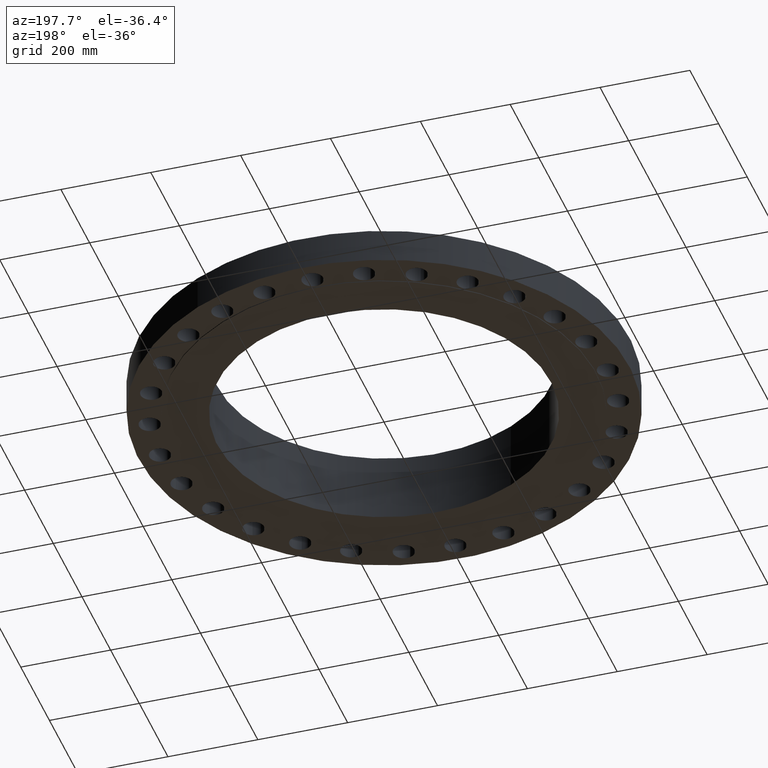
[diagram: clean part render]
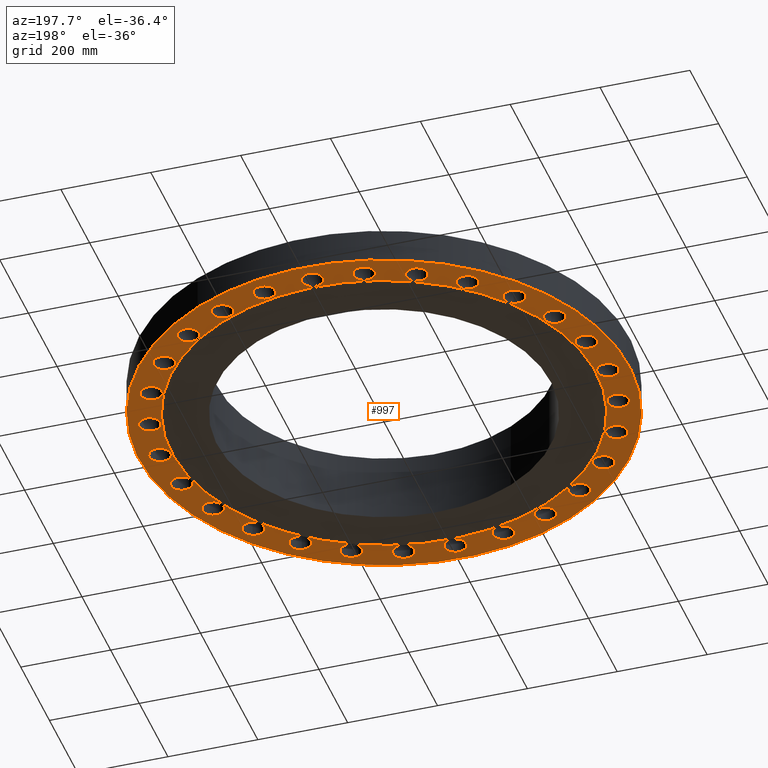
[diagram: same view with one face highlighted and labeled with its STEP entity id]
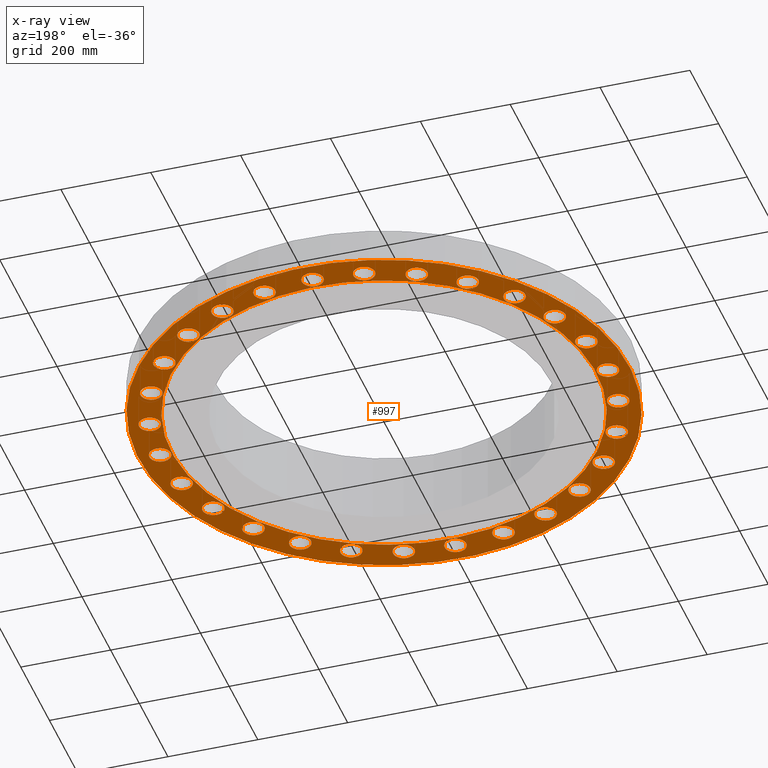
[diagram: x-ray of the same camera — body ghosted, the highlighted face saturated]
A machine part, auxiliary view. The second image highlights one B-rep face of the part: STEP entity #997.
The next image is the same camera in x-ray: the body ghosted, the highlighted face saturated — about 0% of this face is hidden behind the body in this view.
In plain terms, the highlighted planar face has unit normal (0, 0, -1).
Its self-contained STEP definition (entity closure, byte-faithful):
#61=CARTESIAN_POINT('Vertex',(477.521838754,11.4467641598,0.)) ;
#66=CARTESIAN_POINT('Axis2P3D Location',(498.475000002,0.,0.)) ;
#70=CARTESIAN_POINT('Vertex',(519.42816125,-11.4467641598,0.)) ;
#92=CARTESIAN_POINT('Axis2P3D Location',(498.475000002,0.,0.)) ;
#114=CARTESIAN_POINT('Axis2P3D Location',(0.,0.,5.68434188608E-014)) ;
#118=CARTESIAN_POINT('Vertex',(-261.814286633,-479.24783705,7.1054273576E-014)) ;
#120=CARTESIAN_POINT('Vertex',(261.814286633,479.24783705,7.1054273576E-014)) ;
#149=CARTESIAN_POINT('Axis2P3D Location',(0.,0.,5.68434188608E-014)) ;
#460=CARTESIAN_POINT('Vertex',(-226.438914416,-414.493652556,5.68434188608E-014)) ;
#463=CARTESIAN_POINT('Axis2P3D Location',(0.,0.,5.68434188608E-014)) ;
#467=CARTESIAN_POINT('Vertex',(226.438914416,414.493652556,5.68434188608E-014)) ;
#482=CARTESIAN_POINT('Axis2P3D Location',(0.,0.,5.68434188608E-014)) ;
#494=CARTESIAN_POINT('Axis2P3D Location',(0.,472.313000002,0.)) ;
#511=CARTESIAN_POINT('Axis2P3D Location',(485.977191027,-110.921122554,0.)) ;
#515=CARTESIAN_POINT('Vertex',(468.096513929,-95.0988356606,0.)) ;
#517=CARTESIAN_POINT('Vertex',(503.857868124,-126.743409448,0.)) ;
#520=CARTESIAN_POINT('Axis2P3D Location',(485.977191027,-110.921122554,0.)) ;
#529=CARTESIAN_POINT('Axis2P3D Location',(449.110456429,-216.280196857,0.)) ;
#533=CARTESIAN_POINT('Vertex',(435.198875296,-196.875782763,0.)) ;
#535=CARTESIAN_POINT('Vertex',(463.022037563,-235.684610952,0.)) ;
#538=CARTESIAN_POINT('Axis2P3D Location',(449.110456429,-216.280196857,0.)) ;
#547=CARTESIAN_POINT('Axis2P3D Location',(389.723448225,-310.794078983,0.)) ;
#551=CARTESIAN_POINT('Vertex',(380.478547822,-288.780556036,0.)) ;
#553=CARTESIAN_POINT('Vertex',(398.968348628,-332.80760193,-5.68434188608E-014)) ;
#556=CARTESIAN_POINT('Axis2P3D Location',(389.723448225,-310.794078983,0.)) ;
#565=CARTESIAN_POINT('Axis2P3D Location',(310.794078983,-389.723448225,0.)) ;
#569=CARTESIAN_POINT('Vertex',(306.679437221,-366.204666386,0.)) ;
#571=CARTESIAN_POINT('Vertex',(314.908720745,-413.242230063,0.)) ;
#574=CARTESIAN_POINT('Axis2P3D Location',(310.794078983,-389.723448225,0.)) ;
#583=CARTESIAN_POINT('Axis2P3D Location',(216.280196857,-449.110456429,0.)) ;
#587=CARTESIAN_POINT('Vertex',(217.502139055,-425.265745627,0.)) ;
#589=CARTESIAN_POINT('Vertex',(215.05825466,-472.955167232,0.)) ;
#592=CARTESIAN_POINT('Axis2P3D Location',(216.280196857,-449.110456429,0.)) ;
#601=CARTESIAN_POINT('Axis2P3D Location',(110.921122554,-485.977191027,0.)) ;
#605=CARTESIAN_POINT('Vertex',(117.418375428,-463.002224626,0.)) ;
#607=CARTESIAN_POINT('Vertex',(104.423869681,-508.952157427,0.)) ;
#610=CARTESIAN_POINT('Axis2P3D Location',(110.921122554,-485.977191027,0.)) ;
#619=CARTESIAN_POINT('Axis2P3D Location',(1.03028696685E-013,-498.475000002,0.)) ;
#623=CARTESIAN_POINT('Vertex',(11.4467641598,-477.521838754,0.)) ;
#625=CARTESIAN_POINT('Vertex',(-11.4467641598,-519.42816125,0.)) ;
#628=CARTESIAN_POINT('Axis2P3D Location',(7.46069872548E-014,-498.475000002,0.)) ;
#637=CARTESIAN_POINT('Axis2P3D Location',(-110.921122554,-485.977191027,0.)) ;
#641=CARTESIAN_POINT('Vertex',(-95.0988356606,-468.096513929,0.)) ;
#643=CARTESIAN_POINT('Vertex',(-126.743409448,-503.857868124,-5.68434188608E-014)) ;
#646=CARTESIAN_POINT('Axis2P3D Location',(-110.921122554,-485.977191027,0.)) ;
#655=CARTESIAN_POINT('Axis2P3D Location',(-216.280196857,-449.110456429,0.)) ;
#659=CARTESIAN_POINT('Vertex',(-196.875782763,-435.198875296,0.)) ;
#661=CARTESIAN_POINT('Vertex',(-235.684610952,-463.022037563,0.)) ;
#664=CARTESIAN_POINT('Axis2P3D Location',(-216.280196857,-449.110456429,0.)) ;
#673=CARTESIAN_POINT('Axis2P3D Location',(-310.794078983,-389.723448225,0.)) ;
#677=CARTESIAN_POINT('Vertex',(-288.780556036,-380.478547822,0.)) ;
#679=CARTESIAN_POINT('Vertex',(-332.80760193,-398.968348628,0.)) ;
#682=CARTESIAN_POINT('Axis2P3D Location',(-310.794078983,-389.723448225,0.)) ;
#691=CARTESIAN_POINT('Axis2P3D Location',(-389.723448225,-310.794078983,0.)) ;
#695=CARTESIAN_POINT('Vertex',(-366.204666386,-306.679437221,0.)) ;
#697=CARTESIAN_POINT('Vertex',(-413.242230063,-314.908720745,0.)) ;
#700=CARTESIAN_POINT('Axis2P3D Location',(-389.723448225,-310.794078983,0.)) ;
#709=CARTESIAN_POINT('Axis2P3D Location',(-449.110456429,-216.280196857,0.)) ;
#713=CARTESIAN_POINT('Vertex',(-425.265745627,-217.502139055,0.)) ;
#715=CARTESIAN_POINT('Vertex',(-472.955167232,-215.05825466,-5.68434188608E-014)) ;
#718=CARTESIAN_POINT('Axis2P3D Location',(-449.110456429,-216.280196857,0.)) ;
#727=CARTESIAN_POINT('Axis2P3D Location',(-485.977191027,-110.921122554,0.)) ;
#731=CARTESIAN_POINT('Vertex',(-463.002224626,-117.418375428,0.)) ;
#733=CARTESIAN_POINT('Vertex',(-508.952157427,-104.423869681,0.)) ;
#736=CARTESIAN_POINT('Axis2P3D Location',(-485.977191027,-110.921122554,0.)) ;
#745=CARTESIAN_POINT('Axis2P3D Location',(-498.475000002,-2.84217094304E-013,0.)) ;
#749=CARTESIAN_POINT('Vertex',(-477.521838754,-11.4467641598,0.)) ;
#751=CARTESIAN_POINT('Vertex',(-519.42816125,11.4467641598,0.)) ;
#754=CARTESIAN_POINT('Axis2P3D Location',(-498.475000002,-2.84217094304E-013,0.)) ;
#763=CARTESIAN_POINT('Axis2P3D Location',(-485.977191027,110.921122554,0.)) ;
#767=CARTESIAN_POINT('Vertex',(-468.096513929,95.0988356606,0.)) ;
#769=CARTESIAN_POINT('Vertex',(-503.857868124,126.743409448,0.)) ;
#772=CARTESIAN_POINT('Axis2P3D Location',(-485.977191027,110.921122554,0.)) ;
#781=CARTESIAN_POINT('Axis2P3D Location',(-449.110456429,216.280196857,0.)) ;
#785=CARTESIAN_POINT('Vertex',(-435.198875296,196.875782763,0.)) ;
#787=CARTESIAN_POINT('Vertex',(-463.022037563,235.684610952,0.)) ;
#790=CARTESIAN_POINT('Axis2P3D Location',(-449.110456429,216.280196857,0.)) ;
#799=CARTESIAN_POINT('Axis2P3D Location',(-389.723448225,310.794078983,0.)) ;
#803=CARTESIAN_POINT('Vertex',(-380.478547822,288.780556036,0.)) ;
#805=CARTESIAN_POINT('Vertex',(-398.968348628,332.80760193,0.)) ;
#808=CARTESIAN_POINT('Axis2P3D Location',(-389.723448225,310.794078983,0.)) ;
#817=CARTESIAN_POINT('Axis2P3D Location',(-310.794078983,389.723448225,0.)) ;
#821=CARTESIAN_POINT('Vertex',(-306.679437221,366.204666386,0.)) ;
#823=CARTESIAN_POINT('Vertex',(-314.908720745,413.242230063,0.)) ;
#826=CARTESIAN_POINT('Axis2P3D Location',(-310.794078983,389.723448225,0.)) ;
#835=CARTESIAN_POINT('Axis2P3D Location',(-216.280196857,449.110456429,0.)) ;
#839=CARTESIAN_POINT('Vertex',(-217.502139055,425.265745627,0.)) ;
#841=CARTESIAN_POINT('Vertex',(-215.05825466,472.955167232,0.)) ;
#844=CARTESIAN_POINT('Axis2P3D Location',(-216.280196857,449.110456429,0.)) ;
#853=CARTESIAN_POINT('Axis2P3D Location',(-110.921122554,485.977191027,0.)) ;
#857=CARTESIAN_POINT('Vertex',(-117.418375428,463.002224626,0.)) ;
#859=CARTESIAN_POINT('Vertex',(-104.423869681,508.952157427,0.)) ;
#862=CARTESIAN_POINT('Axis2P3D Location',(-110.921122554,485.977191027,0.)) ;
#871=CARTESIAN_POINT('Axis2P3D Location',(-1.06581410364E-013,498.475000002,0.)) ;
#875=CARTESIAN_POINT('Vertex',(-11.4467641598,477.521838754,0.)) ;
#877=CARTESIAN_POINT('Vertex',(11.4467641598,519.42816125,0.)) ;
#880=CARTESIAN_POINT('Axis2P3D Location',(-6.75015598972E-014,498.475000002,0.)) ;
#889=CARTESIAN_POINT('Axis2P3D Location',(110.921122554,485.977191027,0.)) ;
#893=CARTESIAN_POINT('Vertex',(95.0988356606,468.096513929,0.)) ;
#895=CARTESIAN_POINT('Vertex',(126.743409448,503.857868124,0.)) ;
#898=CARTESIAN_POINT('Axis2P3D Location',(110.921122554,485.977191027,0.)) ;
#907=CARTESIAN_POINT('Axis2P3D Location',(216.280196857,449.110456429,0.)) ;
#911=CARTESIAN_POINT('Vertex',(196.875782763,435.198875296,0.)) ;
#913=CARTESIAN_POINT('Vertex',(235.684610952,463.022037563,0.)) ;
#916=CARTESIAN_POINT('Axis2P3D Location',(216.280196857,449.110456429,0.)) ;
#925=CARTESIAN_POINT('Axis2P3D Location',(310.794078983,389.723448225,0.)) ;
#929=CARTESIAN_POINT('Vertex',(288.780556036,380.478547822,0.)) ;
#931=CARTESIAN_POINT('Vertex',(332.80760193,398.968348628,0.)) ;
#934=CARTESIAN_POINT('Axis2P3D Location',(310.794078983,389.723448225,0.)) ;
#943=CARTESIAN_POINT('Axis2P3D Location',(389.723448225,310.794078983,0.)) ;
#947=CARTESIAN_POINT('Vertex',(366.204666386,306.679437221,0.)) ;
#949=CARTESIAN_POINT('Vertex',(413.242230063,314.908720745,0.)) ;
#952=CARTESIAN_POINT('Axis2P3D Location',(389.723448225,310.794078983,0.)) ;
#961=CARTESIAN_POINT('Axis2P3D Location',(449.110456429,216.280196857,0.)) ;
#965=CARTESIAN_POINT('Vertex',(425.265745627,217.502139055,0.)) ;
#967=CARTESIAN_POINT('Vertex',(472.955167232,215.05825466,0.)) ;
#970=CARTESIAN_POINT('Axis2P3D Location',(449.110456429,216.280196857,0.)) ;
#979=CARTESIAN_POINT('Axis2P3D Location',(485.977191027,110.921122554,0.)) ;
#983=CARTESIAN_POINT('Vertex',(463.002224626,117.418375428,0.)) ;
#985=CARTESIAN_POINT('Vertex',(508.952157427,104.423869681,0.)) ;
#988=CARTESIAN_POINT('Axis2P3D Location',(485.977191027,110.921122554,0.)) ;
#67=DIRECTION('Axis2P3D Direction',(0.,-0.,-1.)) ;
#93=DIRECTION('Axis2P3D Direction',(0.,-0.,-1.)) ;
#115=DIRECTION('Axis2P3D Direction',(0.,0.,-1.)) ;
#150=DIRECTION('Axis2P3D Direction',(0.,0.,-1.)) ;
#464=DIRECTION('Axis2P3D Direction',(0.,0.,-1.)) ;
#483=DIRECTION('Axis2P3D Direction',(0.,0.,-1.)) ;
#495=DIRECTION('Axis2P3D Direction',(0.,0.,-1.)) ;
#496=DIRECTION('Axis2P3D XDirection',(1.,0.,0.)) ;
#512=DIRECTION('Axis2P3D Direction',(0.,0.,-1.)) ;
#521=DIRECTION('Axis2P3D Direction',(0.,0.,-1.)) ;
#530=DIRECTION('Axis2P3D Direction',(0.,0.,-1.)) ;
#539=DIRECTION('Axis2P3D Direction',(0.,0.,-1.)) ;
#548=DIRECTION('Axis2P3D Direction',(0.,0.,-1.)) ;
#557=DIRECTION('Axis2P3D Direction',(0.,0.,-1.)) ;
#566=DIRECTION('Axis2P3D Direction',(0.,0.,-1.)) ;
#575=DIRECTION('Axis2P3D Direction',(0.,0.,-1.)) ;
#584=DIRECTION('Axis2P3D Direction',(0.,0.,-1.)) ;
#593=DIRECTION('Axis2P3D Direction',(0.,0.,-1.)) ;
#602=DIRECTION('Axis2P3D Direction',(0.,0.,-1.)) ;
#611=DIRECTION('Axis2P3D Direction',(0.,0.,-1.)) ;
#620=DIRECTION('Axis2P3D Direction',(0.,0.,-1.)) ;
#629=DIRECTION('Axis2P3D Direction',(0.,0.,-1.)) ;
#638=DIRECTION('Axis2P3D Direction',(0.,0.,-1.)) ;
#647=DIRECTION('Axis2P3D Direction',(0.,0.,-1.)) ;
#656=DIRECTION('Axis2P3D Direction',(0.,0.,-1.)) ;
#665=DIRECTION('Axis2P3D Direction',(0.,0.,-1.)) ;
#674=DIRECTION('Axis2P3D Direction',(0.,0.,-1.)) ;
#683=DIRECTION('Axis2P3D Direction',(0.,0.,-1.)) ;
#692=DIRECTION('Axis2P3D Direction',(0.,0.,-1.)) ;
#701=DIRECTION('Axis2P3D Direction',(0.,0.,-1.)) ;
#710=DIRECTION('Axis2P3D Direction',(0.,0.,-1.)) ;
#719=DIRECTION('Axis2P3D Direction',(0.,0.,-1.)) ;
#728=DIRECTION('Axis2P3D Direction',(0.,0.,-1.)) ;
#737=DIRECTION('Axis2P3D Direction',(0.,0.,-1.)) ;
#746=DIRECTION('Axis2P3D Direction',(0.,0.,-1.)) ;
#755=DIRECTION('Axis2P3D Direction',(0.,0.,-1.)) ;
#764=DIRECTION('Axis2P3D Direction',(0.,0.,-1.)) ;
#773=DIRECTION('Axis2P3D Direction',(0.,0.,-1.)) ;
#782=DIRECTION('Axis2P3D Direction',(0.,0.,-1.)) ;
#791=DIRECTION('Axis2P3D Direction',(0.,0.,-1.)) ;
#800=DIRECTION('Axis2P3D Direction',(0.,0.,-1.)) ;
#809=DIRECTION('Axis2P3D Direction',(0.,0.,-1.)) ;
#818=DIRECTION('Axis2P3D Direction',(0.,0.,-1.)) ;
#827=DIRECTION('Axis2P3D Direction',(0.,0.,-1.)) ;
#836=DIRECTION('Axis2P3D Direction',(0.,0.,-1.)) ;
#845=DIRECTION('Axis2P3D Direction',(0.,0.,-1.)) ;
#854=DIRECTION('Axis2P3D Direction',(0.,0.,-1.)) ;
#863=DIRECTION('Axis2P3D Direction',(0.,0.,-1.)) ;
#872=DIRECTION('Axis2P3D Direction',(0.,0.,-1.)) ;
#881=DIRECTION('Axis2P3D Direction',(0.,0.,-1.)) ;
#890=DIRECTION('Axis2P3D Direction',(0.,0.,-1.)) ;
#899=DIRECTION('Axis2P3D Direction',(0.,0.,-1.)) ;
#908=DIRECTION('Axis2P3D Direction',(0.,0.,-1.)) ;
#917=DIRECTION('Axis2P3D Direction',(0.,0.,-1.)) ;
#926=DIRECTION('Axis2P3D Direction',(0.,0.,-1.)) ;
#935=DIRECTION('Axis2P3D Direction',(0.,0.,-1.)) ;
#944=DIRECTION('Axis2P3D Direction',(0.,0.,-1.)) ;
#953=DIRECTION('Axis2P3D Direction',(0.,0.,-1.)) ;
#962=DIRECTION('Axis2P3D Direction',(0.,0.,-1.)) ;
#971=DIRECTION('Axis2P3D Direction',(0.,0.,-1.)) ;
#980=DIRECTION('Axis2P3D Direction',(0.,0.,-1.)) ;
#989=DIRECTION('Axis2P3D Direction',(0.,0.,-1.)) ;
#68=AXIS2_PLACEMENT_3D('Circle Axis2P3D',#66,#67,$) ;
#94=AXIS2_PLACEMENT_3D('Circle Axis2P3D',#92,#93,$) ;
#116=AXIS2_PLACEMENT_3D('Circle Axis2P3D',#114,#115,$) ;
#151=AXIS2_PLACEMENT_3D('Circle Axis2P3D',#149,#150,$) ;
#465=AXIS2_PLACEMENT_3D('Circle Axis2P3D',#463,#464,$) ;
#484=AXIS2_PLACEMENT_3D('Circle Axis2P3D',#482,#483,$) ;
#497=AXIS2_PLACEMENT_3D('Plane Axis2P3D',#494,#495,#496) ;
#513=AXIS2_PLACEMENT_3D('Circle Axis2P3D',#511,#512,$) ;
#522=AXIS2_PLACEMENT_3D('Circle Axis2P3D',#520,#521,$) ;
#531=AXIS2_PLACEMENT_3D('Circle Axis2P3D',#529,#530,$) ;
#540=AXIS2_PLACEMENT_3D('Circle Axis2P3D',#538,#539,$) ;
#549=AXIS2_PLACEMENT_3D('Circle Axis2P3D',#547,#548,$) ;
#558=AXIS2_PLACEMENT_3D('Circle Axis2P3D',#556,#557,$) ;
#567=AXIS2_PLACEMENT_3D('Circle Axis2P3D',#565,#566,$) ;
#576=AXIS2_PLACEMENT_3D('Circle Axis2P3D',#574,#575,$) ;
#585=AXIS2_PLACEMENT_3D('Circle Axis2P3D',#583,#584,$) ;
#594=AXIS2_PLACEMENT_3D('Circle Axis2P3D',#592,#593,$) ;
#603=AXIS2_PLACEMENT_3D('Circle Axis2P3D',#601,#602,$) ;
#612=AXIS2_PLACEMENT_3D('Circle Axis2P3D',#610,#611,$) ;
#621=AXIS2_PLACEMENT_3D('Circle Axis2P3D',#619,#620,$) ;
#630=AXIS2_PLACEMENT_3D('Circle Axis2P3D',#628,#629,$) ;
#639=AXIS2_PLACEMENT_3D('Circle Axis2P3D',#637,#638,$) ;
#648=AXIS2_PLACEMENT_3D('Circle Axis2P3D',#646,#647,$) ;
#657=AXIS2_PLACEMENT_3D('Circle Axis2P3D',#655,#656,$) ;
#666=AXIS2_PLACEMENT_3D('Circle Axis2P3D',#664,#665,$) ;
#675=AXIS2_PLACEMENT_3D('Circle Axis2P3D',#673,#674,$) ;
#684=AXIS2_PLACEMENT_3D('Circle Axis2P3D',#682,#683,$) ;
#693=AXIS2_PLACEMENT_3D('Circle Axis2P3D',#691,#692,$) ;
#702=AXIS2_PLACEMENT_3D('Circle Axis2P3D',#700,#701,$) ;
#711=AXIS2_PLACEMENT_3D('Circle Axis2P3D',#709,#710,$) ;
#720=AXIS2_PLACEMENT_3D('Circle Axis2P3D',#718,#719,$) ;
#729=AXIS2_PLACEMENT_3D('Circle Axis2P3D',#727,#728,$) ;
#738=AXIS2_PLACEMENT_3D('Circle Axis2P3D',#736,#737,$) ;
#747=AXIS2_PLACEMENT_3D('Circle Axis2P3D',#745,#746,$) ;
#756=AXIS2_PLACEMENT_3D('Circle Axis2P3D',#754,#755,$) ;
#765=AXIS2_PLACEMENT_3D('Circle Axis2P3D',#763,#764,$) ;
#774=AXIS2_PLACEMENT_3D('Circle Axis2P3D',#772,#773,$) ;
#783=AXIS2_PLACEMENT_3D('Circle Axis2P3D',#781,#782,$) ;
#792=AXIS2_PLACEMENT_3D('Circle Axis2P3D',#790,#791,$) ;
#801=AXIS2_PLACEMENT_3D('Circle Axis2P3D',#799,#800,$) ;
#810=AXIS2_PLACEMENT_3D('Circle Axis2P3D',#808,#809,$) ;
#819=AXIS2_PLACEMENT_3D('Circle Axis2P3D',#817,#818,$) ;
#828=AXIS2_PLACEMENT_3D('Circle Axis2P3D',#826,#827,$) ;
#837=AXIS2_PLACEMENT_3D('Circle Axis2P3D',#835,#836,$) ;
#846=AXIS2_PLACEMENT_3D('Circle Axis2P3D',#844,#845,$) ;
#855=AXIS2_PLACEMENT_3D('Circle Axis2P3D',#853,#854,$) ;
#864=AXIS2_PLACEMENT_3D('Circle Axis2P3D',#862,#863,$) ;
#873=AXIS2_PLACEMENT_3D('Circle Axis2P3D',#871,#872,$) ;
#882=AXIS2_PLACEMENT_3D('Circle Axis2P3D',#880,#881,$) ;
#891=AXIS2_PLACEMENT_3D('Circle Axis2P3D',#889,#890,$) ;
#900=AXIS2_PLACEMENT_3D('Circle Axis2P3D',#898,#899,$) ;
#909=AXIS2_PLACEMENT_3D('Circle Axis2P3D',#907,#908,$) ;
#918=AXIS2_PLACEMENT_3D('Circle Axis2P3D',#916,#917,$) ;
#927=AXIS2_PLACEMENT_3D('Circle Axis2P3D',#925,#926,$) ;
#936=AXIS2_PLACEMENT_3D('Circle Axis2P3D',#934,#935,$) ;
#945=AXIS2_PLACEMENT_3D('Circle Axis2P3D',#943,#944,$) ;
#954=AXIS2_PLACEMENT_3D('Circle Axis2P3D',#952,#953,$) ;
#963=AXIS2_PLACEMENT_3D('Circle Axis2P3D',#961,#962,$) ;
#972=AXIS2_PLACEMENT_3D('Circle Axis2P3D',#970,#971,$) ;
#981=AXIS2_PLACEMENT_3D('Circle Axis2P3D',#979,#980,$) ;
#990=AXIS2_PLACEMENT_3D('Circle Axis2P3D',#988,#989,$) ;
#500=ORIENTED_EDGE('',*,*,#122,.T.) ;
#501=ORIENTED_EDGE('',*,*,#153,.T.) ;
#504=ORIENTED_EDGE('',*,*,#96,.F.) ;
#505=ORIENTED_EDGE('',*,*,#72,.F.) ;
#508=ORIENTED_EDGE('',*,*,#486,.F.) ;
#509=ORIENTED_EDGE('',*,*,#469,.F.) ;
#526=ORIENTED_EDGE('',*,*,#519,.F.) ;
#527=ORIENTED_EDGE('',*,*,#524,.F.) ;
#544=ORIENTED_EDGE('',*,*,#537,.F.) ;
#545=ORIENTED_EDGE('',*,*,#542,.F.) ;
#562=ORIENTED_EDGE('',*,*,#555,.F.) ;
#563=ORIENTED_EDGE('',*,*,#560,.F.) ;
#580=ORIENTED_EDGE('',*,*,#573,.F.) ;
#581=ORIENTED_EDGE('',*,*,#578,.F.) ;
#598=ORIENTED_EDGE('',*,*,#591,.F.) ;
#599=ORIENTED_EDGE('',*,*,#596,.F.) ;
#616=ORIENTED_EDGE('',*,*,#609,.F.) ;
#617=ORIENTED_EDGE('',*,*,#614,.F.) ;
#634=ORIENTED_EDGE('',*,*,#627,.F.) ;
#635=ORIENTED_EDGE('',*,*,#632,.F.) ;
#652=ORIENTED_EDGE('',*,*,#645,.F.) ;
#653=ORIENTED_EDGE('',*,*,#650,.F.) ;
#670=ORIENTED_EDGE('',*,*,#663,.F.) ;
#671=ORIENTED_EDGE('',*,*,#668,.F.) ;
#688=ORIENTED_EDGE('',*,*,#681,.F.) ;
#689=ORIENTED_EDGE('',*,*,#686,.F.) ;
#706=ORIENTED_EDGE('',*,*,#699,.F.) ;
#707=ORIENTED_EDGE('',*,*,#704,.F.) ;
#724=ORIENTED_EDGE('',*,*,#717,.F.) ;
#725=ORIENTED_EDGE('',*,*,#722,.F.) ;
#742=ORIENTED_EDGE('',*,*,#735,.F.) ;
#743=ORIENTED_EDGE('',*,*,#740,.F.) ;
#760=ORIENTED_EDGE('',*,*,#753,.F.) ;
#761=ORIENTED_EDGE('',*,*,#758,.F.) ;
#778=ORIENTED_EDGE('',*,*,#771,.F.) ;
#779=ORIENTED_EDGE('',*,*,#776,.F.) ;
#796=ORIENTED_EDGE('',*,*,#789,.F.) ;
#797=ORIENTED_EDGE('',*,*,#794,.F.) ;
#814=ORIENTED_EDGE('',*,*,#807,.F.) ;
#815=ORIENTED_EDGE('',*,*,#812,.F.) ;
#832=ORIENTED_EDGE('',*,*,#825,.F.) ;
#833=ORIENTED_EDGE('',*,*,#830,.F.) ;
#850=ORIENTED_EDGE('',*,*,#843,.F.) ;
#851=ORIENTED_EDGE('',*,*,#848,.F.) ;
#868=ORIENTED_EDGE('',*,*,#861,.F.) ;
#869=ORIENTED_EDGE('',*,*,#866,.F.) ;
#886=ORIENTED_EDGE('',*,*,#879,.F.) ;
#887=ORIENTED_EDGE('',*,*,#884,.F.) ;
#904=ORIENTED_EDGE('',*,*,#897,.F.) ;
#905=ORIENTED_EDGE('',*,*,#902,.F.) ;
#922=ORIENTED_EDGE('',*,*,#915,.F.) ;
#923=ORIENTED_EDGE('',*,*,#920,.F.) ;
#940=ORIENTED_EDGE('',*,*,#933,.F.) ;
#941=ORIENTED_EDGE('',*,*,#938,.F.) ;
#958=ORIENTED_EDGE('',*,*,#951,.F.) ;
#959=ORIENTED_EDGE('',*,*,#956,.F.) ;
#976=ORIENTED_EDGE('',*,*,#969,.F.) ;
#977=ORIENTED_EDGE('',*,*,#974,.F.) ;
#994=ORIENTED_EDGE('',*,*,#987,.F.) ;
#995=ORIENTED_EDGE('',*,*,#992,.F.) ;
#506=FACE_BOUND('',#503,.T.) ;
#510=FACE_BOUND('',#507,.T.) ;
#528=FACE_BOUND('',#525,.T.) ;
#546=FACE_BOUND('',#543,.T.) ;
#564=FACE_BOUND('',#561,.T.) ;
#582=FACE_BOUND('',#579,.T.) ;
#600=FACE_BOUND('',#597,.T.) ;
#618=FACE_BOUND('',#615,.T.) ;
#636=FACE_BOUND('',#633,.T.) ;
#654=FACE_BOUND('',#651,.T.) ;
#672=FACE_BOUND('',#669,.T.) ;
#690=FACE_BOUND('',#687,.T.) ;
#708=FACE_BOUND('',#705,.T.) ;
#726=FACE_BOUND('',#723,.T.) ;
#744=FACE_BOUND('',#741,.T.) ;
#762=FACE_BOUND('',#759,.T.) ;
#780=FACE_BOUND('',#777,.T.) ;
#798=FACE_BOUND('',#795,.T.) ;
#816=FACE_BOUND('',#813,.T.) ;
#834=FACE_BOUND('',#831,.T.) ;
#852=FACE_BOUND('',#849,.T.) ;
#870=FACE_BOUND('',#867,.T.) ;
#888=FACE_BOUND('',#885,.T.) ;
#906=FACE_BOUND('',#903,.T.) ;
#924=FACE_BOUND('',#921,.T.) ;
#942=FACE_BOUND('',#939,.T.) ;
#960=FACE_BOUND('',#957,.T.) ;
#978=FACE_BOUND('',#975,.T.) ;
#996=FACE_BOUND('',#993,.T.) ;
#997=ADVANCED_FACE('PartBody',(#502,#506,#510,#528,#546,#564,#582,#600,#618,#636,#654,#672,#690,#708,#726,#744,#762,#780,#798,#816,#834,#852,#870,#888,#906,#924,#942,#960,#978,#996),#498,.T.) ;
#69=CIRCLE('generated circle',#68,23.8760000001) ;
#95=CIRCLE('generated circle',#94,23.8760000001) ;
#117=CIRCLE('generated circle',#116,546.100000002) ;
#152=CIRCLE('generated circle',#151,546.100000002) ;
#466=CIRCLE('generated circle',#465,472.313000002) ;
#485=CIRCLE('generated circle',#484,472.313000002) ;
#514=CIRCLE('generated circle',#513,23.8760000001) ;
#523=CIRCLE('generated circle',#522,23.8760000001) ;
#532=CIRCLE('generated circle',#531,23.8760000001) ;
#541=CIRCLE('generated circle',#540,23.8760000001) ;
#550=CIRCLE('generated circle',#549,23.8760000001) ;
#559=CIRCLE('generated circle',#558,23.8760000001) ;
#568=CIRCLE('generated circle',#567,23.8760000001) ;
#577=CIRCLE('generated circle',#576,23.8760000001) ;
#586=CIRCLE('generated circle',#585,23.8760000001) ;
#595=CIRCLE('generated circle',#594,23.8760000001) ;
#604=CIRCLE('generated circle',#603,23.8760000001) ;
#613=CIRCLE('generated circle',#612,23.8760000001) ;
#622=CIRCLE('generated circle',#621,23.8760000001) ;
#631=CIRCLE('generated circle',#630,23.8760000001) ;
#640=CIRCLE('generated circle',#639,23.8760000001) ;
#649=CIRCLE('generated circle',#648,23.8760000001) ;
#658=CIRCLE('generated circle',#657,23.8760000001) ;
#667=CIRCLE('generated circle',#666,23.8760000001) ;
#676=CIRCLE('generated circle',#675,23.8760000001) ;
#685=CIRCLE('generated circle',#684,23.8760000001) ;
#694=CIRCLE('generated circle',#693,23.8760000001) ;
#703=CIRCLE('generated circle',#702,23.8760000001) ;
#712=CIRCLE('generated circle',#711,23.8760000001) ;
#721=CIRCLE('generated circle',#720,23.8760000001) ;
#730=CIRCLE('generated circle',#729,23.8760000001) ;
#739=CIRCLE('generated circle',#738,23.8760000001) ;
#748=CIRCLE('generated circle',#747,23.8760000001) ;
#757=CIRCLE('generated circle',#756,23.8760000001) ;
#766=CIRCLE('generated circle',#765,23.8760000001) ;
#775=CIRCLE('generated circle',#774,23.8760000001) ;
#784=CIRCLE('generated circle',#783,23.8760000001) ;
#793=CIRCLE('generated circle',#792,23.8760000001) ;
#802=CIRCLE('generated circle',#801,23.8760000001) ;
#811=CIRCLE('generated circle',#810,23.8760000001) ;
#820=CIRCLE('generated circle',#819,23.8760000001) ;
#829=CIRCLE('generated circle',#828,23.8760000001) ;
#838=CIRCLE('generated circle',#837,23.8760000001) ;
#847=CIRCLE('generated circle',#846,23.8760000001) ;
#856=CIRCLE('generated circle',#855,23.8760000001) ;
#865=CIRCLE('generated circle',#864,23.8760000001) ;
#874=CIRCLE('generated circle',#873,23.8760000001) ;
#883=CIRCLE('generated circle',#882,23.8760000001) ;
#892=CIRCLE('generated circle',#891,23.8760000001) ;
#901=CIRCLE('generated circle',#900,23.8760000001) ;
#910=CIRCLE('generated circle',#909,23.8760000001) ;
#919=CIRCLE('generated circle',#918,23.8760000001) ;
#928=CIRCLE('generated circle',#927,23.8760000001) ;
#937=CIRCLE('generated circle',#936,23.8760000001) ;
#946=CIRCLE('generated circle',#945,23.8760000001) ;
#955=CIRCLE('generated circle',#954,23.8760000001) ;
#964=CIRCLE('generated circle',#963,23.8760000001) ;
#973=CIRCLE('generated circle',#972,23.8760000001) ;
#982=CIRCLE('generated circle',#981,23.8760000001) ;
#991=CIRCLE('generated circle',#990,23.8760000001) ;
#72=EDGE_CURVE('',#62,#71,#69,.T.) ;
#96=EDGE_CURVE('',#71,#62,#95,.T.) ;
#122=EDGE_CURVE('',#119,#121,#117,.T.) ;
#153=EDGE_CURVE('',#121,#119,#152,.T.) ;
#469=EDGE_CURVE('',#461,#468,#466,.T.) ;
#486=EDGE_CURVE('',#468,#461,#485,.T.) ;
#519=EDGE_CURVE('',#516,#518,#514,.T.) ;
#524=EDGE_CURVE('',#518,#516,#523,.T.) ;
#537=EDGE_CURVE('',#534,#536,#532,.T.) ;
#542=EDGE_CURVE('',#536,#534,#541,.T.) ;
#555=EDGE_CURVE('',#552,#554,#550,.T.) ;
#560=EDGE_CURVE('',#554,#552,#559,.T.) ;
#573=EDGE_CURVE('',#570,#572,#568,.T.) ;
#578=EDGE_CURVE('',#572,#570,#577,.T.) ;
#591=EDGE_CURVE('',#588,#590,#586,.T.) ;
#596=EDGE_CURVE('',#590,#588,#595,.T.) ;
#609=EDGE_CURVE('',#606,#608,#604,.T.) ;
#614=EDGE_CURVE('',#608,#606,#613,.T.) ;
#627=EDGE_CURVE('',#624,#626,#622,.T.) ;
#632=EDGE_CURVE('',#626,#624,#631,.T.) ;
#645=EDGE_CURVE('',#642,#644,#640,.T.) ;
#650=EDGE_CURVE('',#644,#642,#649,.T.) ;
#663=EDGE_CURVE('',#660,#662,#658,.T.) ;
#668=EDGE_CURVE('',#662,#660,#667,.T.) ;
#681=EDGE_CURVE('',#678,#680,#676,.T.) ;
#686=EDGE_CURVE('',#680,#678,#685,.T.) ;
#699=EDGE_CURVE('',#696,#698,#694,.T.) ;
#704=EDGE_CURVE('',#698,#696,#703,.T.) ;
#717=EDGE_CURVE('',#714,#716,#712,.T.) ;
#722=EDGE_CURVE('',#716,#714,#721,.T.) ;
#735=EDGE_CURVE('',#732,#734,#730,.T.) ;
#740=EDGE_CURVE('',#734,#732,#739,.T.) ;
#753=EDGE_CURVE('',#750,#752,#748,.T.) ;
#758=EDGE_CURVE('',#752,#750,#757,.T.) ;
#771=EDGE_CURVE('',#768,#770,#766,.T.) ;
#776=EDGE_CURVE('',#770,#768,#775,.T.) ;
#789=EDGE_CURVE('',#786,#788,#784,.T.) ;
#794=EDGE_CURVE('',#788,#786,#793,.T.) ;
#807=EDGE_CURVE('',#804,#806,#802,.T.) ;
#812=EDGE_CURVE('',#806,#804,#811,.T.) ;
#825=EDGE_CURVE('',#822,#824,#820,.T.) ;
#830=EDGE_CURVE('',#824,#822,#829,.T.) ;
#843=EDGE_CURVE('',#840,#842,#838,.T.) ;
#848=EDGE_CURVE('',#842,#840,#847,.T.) ;
#861=EDGE_CURVE('',#858,#860,#856,.T.) ;
#866=EDGE_CURVE('',#860,#858,#865,.T.) ;
#879=EDGE_CURVE('',#876,#878,#874,.T.) ;
#884=EDGE_CURVE('',#878,#876,#883,.T.) ;
#897=EDGE_CURVE('',#894,#896,#892,.T.) ;
#902=EDGE_CURVE('',#896,#894,#901,.T.) ;
#915=EDGE_CURVE('',#912,#914,#910,.T.) ;
#920=EDGE_CURVE('',#914,#912,#919,.T.) ;
#933=EDGE_CURVE('',#930,#932,#928,.T.) ;
#938=EDGE_CURVE('',#932,#930,#937,.T.) ;
#951=EDGE_CURVE('',#948,#950,#946,.T.) ;
#956=EDGE_CURVE('',#950,#948,#955,.T.) ;
#969=EDGE_CURVE('',#966,#968,#964,.T.) ;
#974=EDGE_CURVE('',#968,#966,#973,.T.) ;
#987=EDGE_CURVE('',#984,#986,#982,.T.) ;
#992=EDGE_CURVE('',#986,#984,#991,.T.) ;
#499=EDGE_LOOP('',(#500,#501)) ;
#503=EDGE_LOOP('',(#504,#505)) ;
#507=EDGE_LOOP('',(#508,#509)) ;
#525=EDGE_LOOP('',(#526,#527)) ;
#543=EDGE_LOOP('',(#544,#545)) ;
#561=EDGE_LOOP('',(#562,#563)) ;
#579=EDGE_LOOP('',(#580,#581)) ;
#597=EDGE_LOOP('',(#598,#599)) ;
#615=EDGE_LOOP('',(#616,#617)) ;
#633=EDGE_LOOP('',(#634,#635)) ;
#651=EDGE_LOOP('',(#652,#653)) ;
#669=EDGE_LOOP('',(#670,#671)) ;
#687=EDGE_LOOP('',(#688,#689)) ;
#705=EDGE_LOOP('',(#706,#707)) ;
#723=EDGE_LOOP('',(#724,#725)) ;
#741=EDGE_LOOP('',(#742,#743)) ;
#759=EDGE_LOOP('',(#760,#761)) ;
#777=EDGE_LOOP('',(#778,#779)) ;
#795=EDGE_LOOP('',(#796,#797)) ;
#813=EDGE_LOOP('',(#814,#815)) ;
#831=EDGE_LOOP('',(#832,#833)) ;
#849=EDGE_LOOP('',(#850,#851)) ;
#867=EDGE_LOOP('',(#868,#869)) ;
#885=EDGE_LOOP('',(#886,#887)) ;
#903=EDGE_LOOP('',(#904,#905)) ;
#921=EDGE_LOOP('',(#922,#923)) ;
#939=EDGE_LOOP('',(#940,#941)) ;
#957=EDGE_LOOP('',(#958,#959)) ;
#975=EDGE_LOOP('',(#976,#977)) ;
#993=EDGE_LOOP('',(#994,#995)) ;
#502=FACE_OUTER_BOUND('',#499,.T.) ;
#498=PLANE('',#497) ;
#62=VERTEX_POINT('',#61) ;
#71=VERTEX_POINT('',#70) ;
#119=VERTEX_POINT('',#118) ;
#121=VERTEX_POINT('',#120) ;
#461=VERTEX_POINT('',#460) ;
#468=VERTEX_POINT('',#467) ;
#516=VERTEX_POINT('',#515) ;
#518=VERTEX_POINT('',#517) ;
#534=VERTEX_POINT('',#533) ;
#536=VERTEX_POINT('',#535) ;
#552=VERTEX_POINT('',#551) ;
#554=VERTEX_POINT('',#553) ;
#570=VERTEX_POINT('',#569) ;
#572=VERTEX_POINT('',#571) ;
#588=VERTEX_POINT('',#587) ;
#590=VERTEX_POINT('',#589) ;
#606=VERTEX_POINT('',#605) ;
#608=VERTEX_POINT('',#607) ;
#624=VERTEX_POINT('',#623) ;
#626=VERTEX_POINT('',#625) ;
#642=VERTEX_POINT('',#641) ;
#644=VERTEX_POINT('',#643) ;
#660=VERTEX_POINT('',#659) ;
#662=VERTEX_POINT('',#661) ;
#678=VERTEX_POINT('',#677) ;
#680=VERTEX_POINT('',#679) ;
#696=VERTEX_POINT('',#695) ;
#698=VERTEX_POINT('',#697) ;
#714=VERTEX_POINT('',#713) ;
#716=VERTEX_POINT('',#715) ;
#732=VERTEX_POINT('',#731) ;
#734=VERTEX_POINT('',#733) ;
#750=VERTEX_POINT('',#749) ;
#752=VERTEX_POINT('',#751) ;
#768=VERTEX_POINT('',#767) ;
#770=VERTEX_POINT('',#769) ;
#786=VERTEX_POINT('',#785) ;
#788=VERTEX_POINT('',#787) ;
#804=VERTEX_POINT('',#803) ;
#806=VERTEX_POINT('',#805) ;
#822=VERTEX_POINT('',#821) ;
#824=VERTEX_POINT('',#823) ;
#840=VERTEX_POINT('',#839) ;
#842=VERTEX_POINT('',#841) ;
#858=VERTEX_POINT('',#857) ;
#860=VERTEX_POINT('',#859) ;
#876=VERTEX_POINT('',#875) ;
#878=VERTEX_POINT('',#877) ;
#894=VERTEX_POINT('',#893) ;
#896=VERTEX_POINT('',#895) ;
#912=VERTEX_POINT('',#911) ;
#914=VERTEX_POINT('',#913) ;
#930=VERTEX_POINT('',#929) ;
#932=VERTEX_POINT('',#931) ;
#948=VERTEX_POINT('',#947) ;
#950=VERTEX_POINT('',#949) ;
#966=VERTEX_POINT('',#965) ;
#968=VERTEX_POINT('',#967) ;
#984=VERTEX_POINT('',#983) ;
#986=VERTEX_POINT('',#985) ;